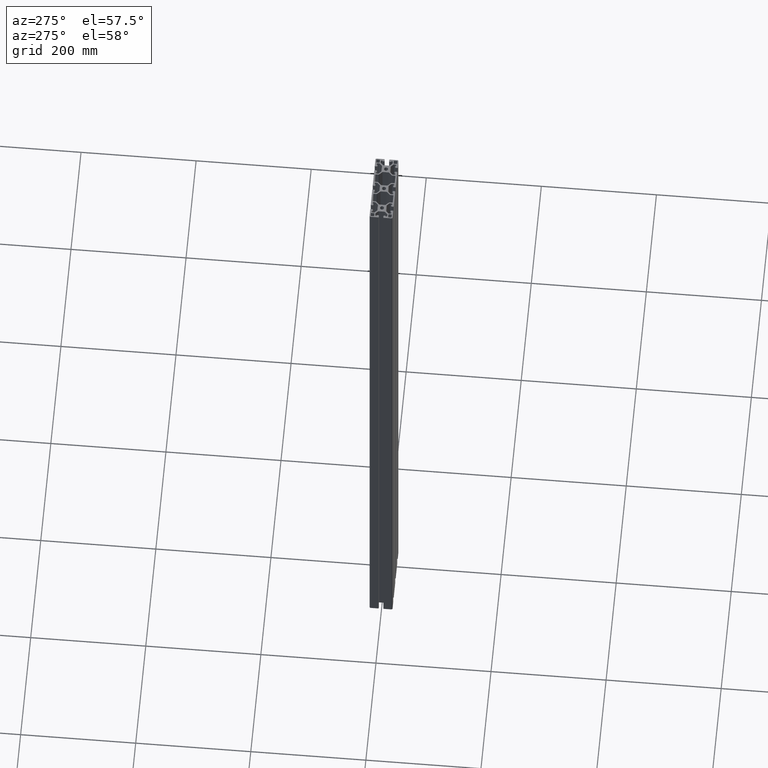
[diagram: clean part render]
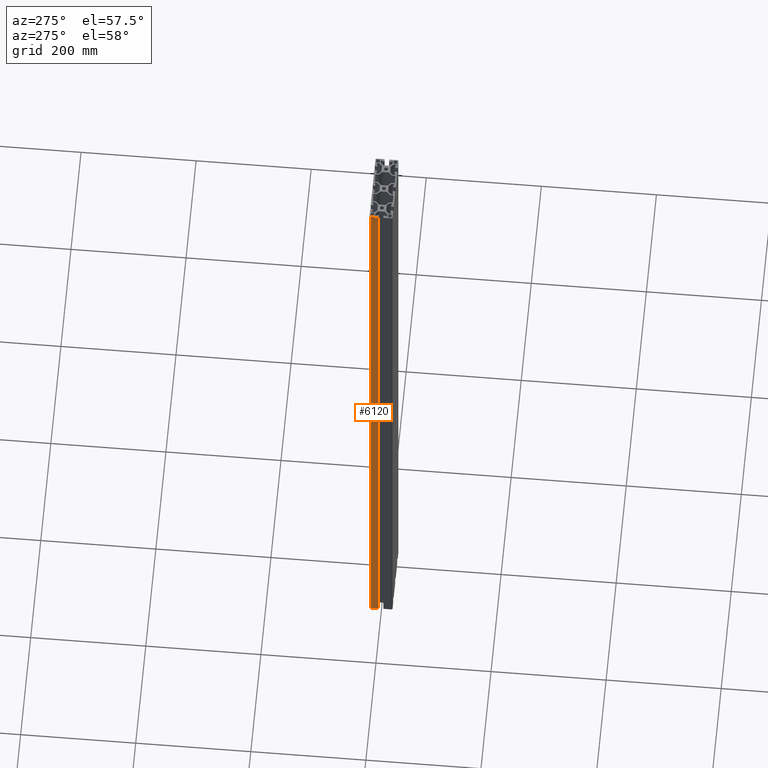
[diagram: same view with one face highlighted and labeled with its STEP entity id]
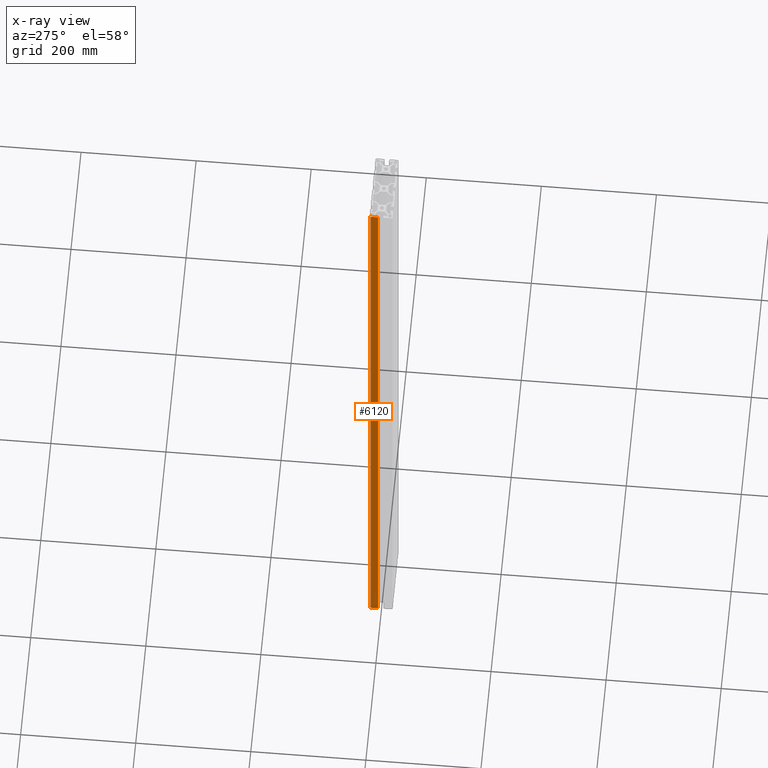
[diagram: x-ray of the same camera — body ghosted, the highlighted face saturated]
A machine part, auxiliary view. The second image highlights one B-rep face of the part: STEP entity #6120.
The next image is the same camera in x-ray: the body ghosted, the highlighted face saturated — about 0% of this face is hidden behind the body in this view.
In plain terms, the highlighted planar face has unit normal (-1, 0, 0).
Its self-contained STEP definition (entity closure, byte-faithful):
#69=PLANE('',#6618);
#258=FACE_OUTER_BOUND('',#568,.T.);
#568=EDGE_LOOP('',(#4380,#4381,#4382,#4383));
#847=LINE('',#8892,#1458);
#1070=LINE('',#9621,#1681);
#1071=LINE('',#9624,#1682);
#1072=LINE('',#9625,#1683);
#1458=VECTOR('',#7070,12.9999739959);
#1681=VECTOR('',#7709,1260.);
#1682=VECTOR('',#7712,12.9999739918491);
#1683=VECTOR('',#7713,1260.);
#2386=VERTEX_POINT('',#8889);
#2387=VERTEX_POINT('',#8891);
#2685=VERTEX_POINT('',#9619);
#2686=VERTEX_POINT('',#9623);
#2985=EDGE_CURVE('',#2386,#2387,#847,.T.);
#3350=EDGE_CURVE('',#2685,#2386,#1070,.T.);
#3351=EDGE_CURVE('',#2685,#2686,#1071,.T.);
#3352=EDGE_CURVE('',#2387,#2686,#1072,.T.);
#4380=ORIENTED_EDGE('',*,*,#2985,.F.);
#4381=ORIENTED_EDGE('',*,*,#3350,.F.);
#4382=ORIENTED_EDGE('',*,*,#3351,.T.);
#4383=ORIENTED_EDGE('',*,*,#3352,.F.);
#6120=ADVANCED_FACE('',(#258),#69,.T.);
#6618=AXIS2_PLACEMENT_3D('',#9622,#7710,#7711);
#7070=DIRECTION('',(0.,1.,0.));
#7709=DIRECTION('',(0.,0.,-1.));
#7710=DIRECTION('center_axis',(-1.,0.,0.));
#7711=DIRECTION('ref_axis',(0.,0.,1.));
#7712=DIRECTION('',(0.,1.,0.));
#7713=DIRECTION('',(0.,0.,1.));
#8889=CARTESIAN_POINT('',(-99.999799994917,4.99999000911495,0.));
#8891=CARTESIAN_POINT('',(-99.9997999949171,17.999964005015,0.));
#8892=CARTESIAN_POINT('',(-99.9997999949171,4.99999000911495,0.));
#9619=CARTESIAN_POINT('',(-99.999799994917,4.999990009115,1260.));
#9621=CARTESIAN_POINT('',(-99.999799994917,4.99999000911495,1260.));
#9622=CARTESIAN_POINT('Origin',(-99.9997999949171,17.499965005015,0.));
#9623=CARTESIAN_POINT('',(-99.9997999949171,17.9999640032146,1260.));
#9624=CARTESIAN_POINT('',(-99.9997999949171,4.999990009115,1260.));
#9625=CARTESIAN_POINT('',(-99.9997999949171,17.999964005015,0.));